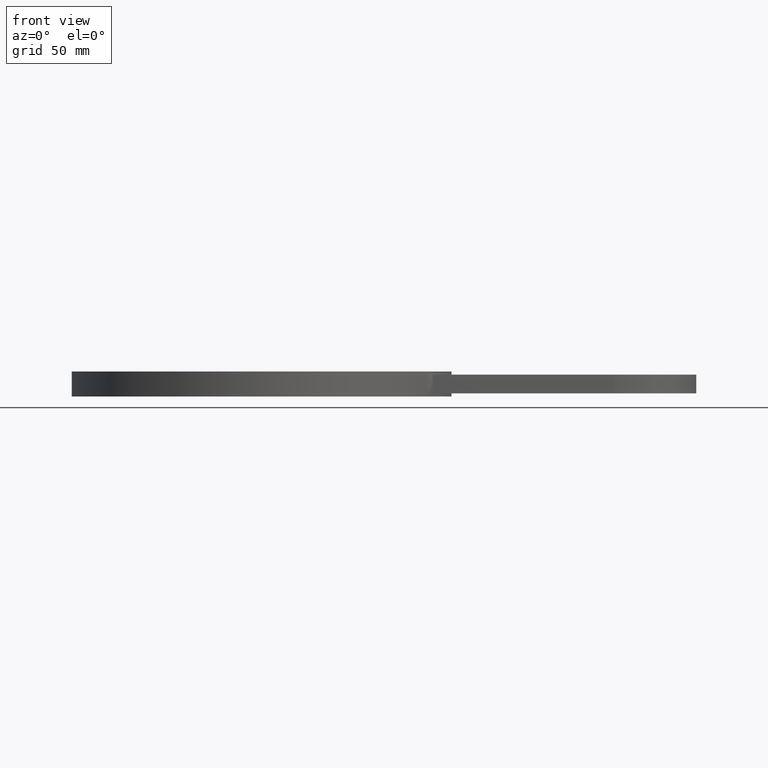
[diagram: clean part render]
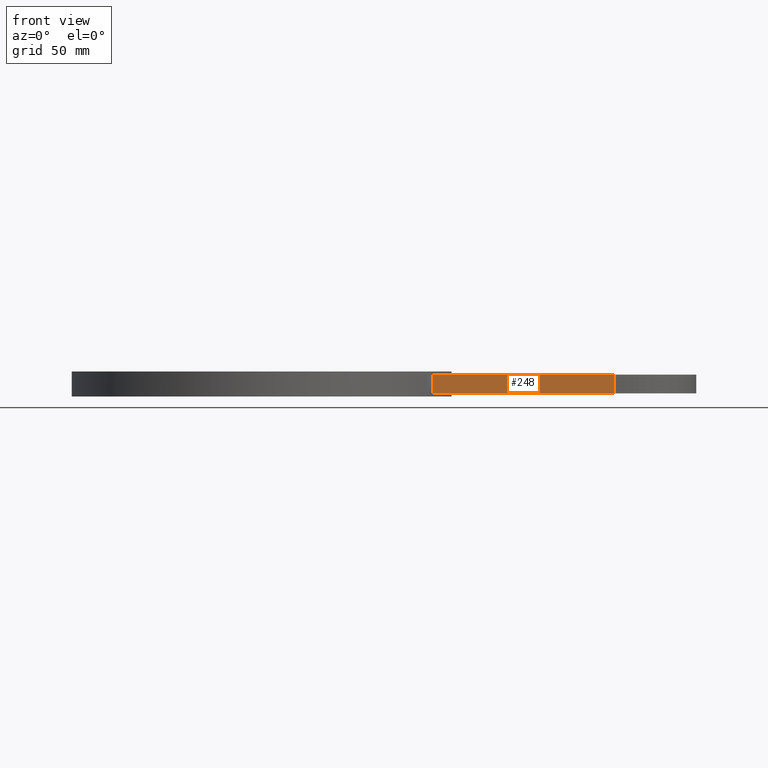
[diagram: same view with one face highlighted and labeled with its STEP entity id]
A machine part, front view. The second image highlights one B-rep face of the part: STEP entity #248.
In plain terms, the highlighted planar face has unit normal (0, -1, 0).
Its self-contained STEP definition (entity closure, byte-faithful):
#221=AXIS2_PLACEMENT_3D('Plane Axis2P3D',#218,#219,#220) ;
#192=CARTESIAN_POINT('Vertex',(2.58903939716,-1.25000000001,-0.142500000001)) ;
#195=CARTESIAN_POINT('Line Origine',(2.58903939716,-1.25000000001,0.)) ;
#199=CARTESIAN_POINT('Vertex',(2.58903939716,-1.25000000001,0.142500000001)) ;
#218=CARTESIAN_POINT('Axis2P3D Location',(2.58903939716,-1.25000000001,0.)) ;
#223=CARTESIAN_POINT('Line Origine',(3.96403939717,-1.25000000001,-0.142500000001)) ;
#227=CARTESIAN_POINT('Vertex',(5.33903939717,-1.25000000001,-0.142500000001)) ;
#230=CARTESIAN_POINT('Line Origine',(5.33903939717,-1.25000000001,0.)) ;
#234=CARTESIAN_POINT('Vertex',(5.33903939717,-1.25000000001,0.142500000001)) ;
#237=CARTESIAN_POINT('Line Origine',(3.96403939717,-1.25000000001,0.142500000001)) ;
#196=DIRECTION('Vector Direction',(0.,0.,0.0393700787402)) ;
#219=DIRECTION('Axis2P3D Direction',(0.,-0.0393700787402,0.)) ;
#220=DIRECTION('Axis2P3D XDirection',(0.0393700787402,0.,0.)) ;
#224=DIRECTION('Vector Direction',(0.0393700787402,0.,0.)) ;
#231=DIRECTION('Vector Direction',(0.,0.,0.0393700787402)) ;
#238=DIRECTION('Vector Direction',(0.0393700787402,0.,0.)) ;
#197=VECTOR('Line Direction',#196,0.0393700787402) ;
#225=VECTOR('Line Direction',#224,0.0393700787402) ;
#232=VECTOR('Line Direction',#231,0.0393700787402) ;
#239=VECTOR('Line Direction',#238,0.0393700787402) ;
#243=ORIENTED_EDGE('',*,*,#201,.F.) ;
#244=ORIENTED_EDGE('',*,*,#229,.T.) ;
#245=ORIENTED_EDGE('',*,*,#236,.T.) ;
#246=ORIENTED_EDGE('',*,*,#241,.F.) ;
#248=ADVANCED_FACE('PartBody',(#247),#222,.T.) ;
#201=EDGE_CURVE('',#193,#200,#198,.T.) ;
#229=EDGE_CURVE('',#193,#228,#226,.T.) ;
#236=EDGE_CURVE('',#228,#235,#233,.T.) ;
#241=EDGE_CURVE('',#200,#235,#240,.T.) ;
#242=EDGE_LOOP('',(#243,#244,#245,#246)) ;
#247=FACE_OUTER_BOUND('',#242,.T.) ;
#198=LINE('Line',#195,#197) ;
#226=LINE('Line',#223,#225) ;
#233=LINE('Line',#230,#232) ;
#240=LINE('Line',#237,#239) ;
#222=PLANE('',#221) ;
#193=VERTEX_POINT('',#192) ;
#200=VERTEX_POINT('',#199) ;
#228=VERTEX_POINT('',#227) ;
#235=VERTEX_POINT('',#234) ;